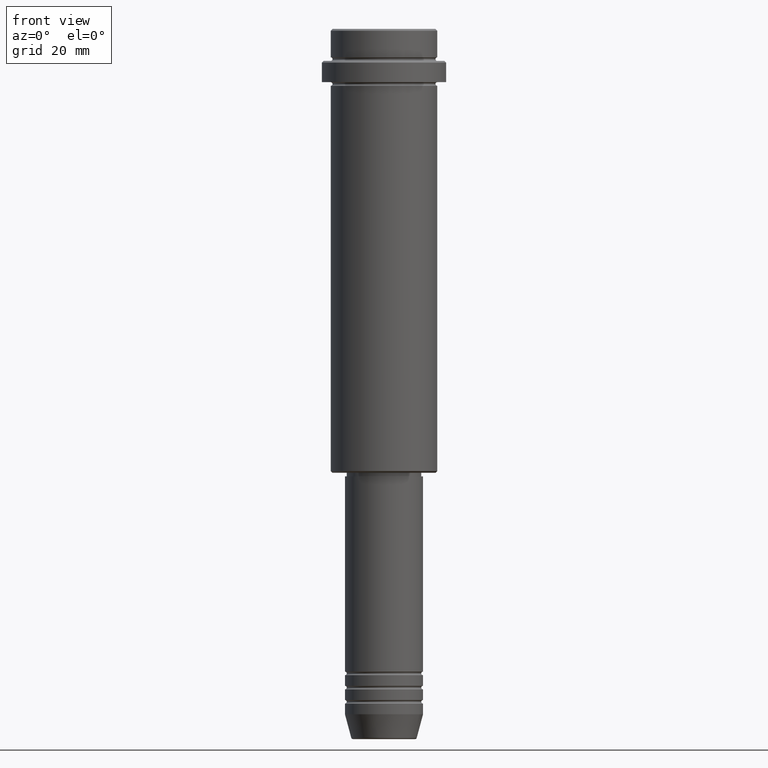
[diagram: clean part render]
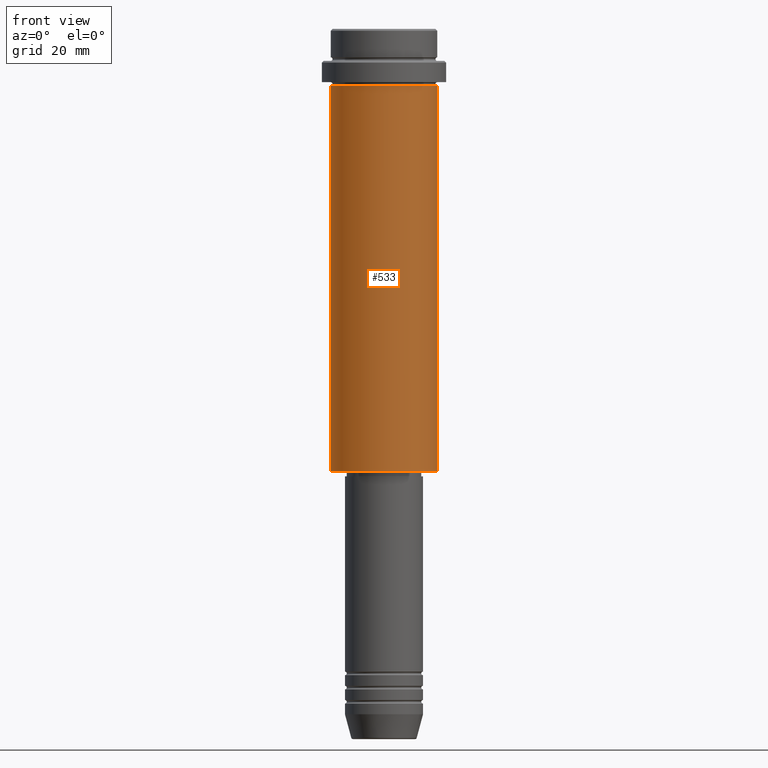
[diagram: same view with one face highlighted and labeled with its STEP entity id]
A machine part, front view. The second image highlights one B-rep face of the part: STEP entity #533.
In plain terms, the highlighted cylindrical surface (partial cylindrical patch) has radius 15 mm, axis along (-0, -0, 1).
Its self-contained STEP definition (entity closure, byte-faithful):
#45 = AXIS2_PLACEMENT_3D ( 'NONE', #937, #1362, #702 ) ;
#276 = DIRECTION ( 'NONE',  ( -0.000000000000000000, -0.000000000000000000, 1.000000000000000000 ) ) ;
#281 = CARTESIAN_POINT ( 'NONE',  ( 15.00000000000000000, 0.000000000000000000, -124.4999999999999858 ) ) ;
#309 = DIRECTION ( 'NONE',  ( -0.000000000000000000, -0.000000000000000000, 1.000000000000000000 ) ) ;
#352 = VERTEX_POINT ( 'NONE', #1314 ) ;
#374 = VERTEX_POINT ( 'NONE', #496 ) ;
#421 = EDGE_CURVE ( 'NONE', #471, #463, #689, .T. ) ;
#463 = VERTEX_POINT ( 'NONE', #281 ) ;
#471 = VERTEX_POINT ( 'NONE', #1139 ) ;
#496 = CARTESIAN_POINT ( 'NONE',  ( 15.00000000000000178, 0.000000000000000000, -16.00000000000000000 ) ) ;
#533 = ADVANCED_FACE ( 'NONE', ( #544 ), #977, .T. ) ;
#544 = FACE_OUTER_BOUND ( 'NONE', #1132, .T. ) ;
#548 = AXIS2_PLACEMENT_3D ( 'NONE', #1155, #1160, #1037 ) ;
#550 = CIRCLE ( 'NONE', #45, 15.00000000000000178 ) ;
#689 = CIRCLE ( 'NONE', #548, 15.00000000000000000 ) ;
#702 = DIRECTION ( 'NONE',  ( 1.000000000000000000, 0.000000000000000000, 0.000000000000000000 ) ) ;
#710 = ORIENTED_EDGE ( 'NONE', *, *, #421, .T. ) ;
#809 = VECTOR ( 'NONE', #276, 1000.000000000000000 ) ;
#814 = LINE ( 'NONE', #1249, #809 ) ;
#859 = LINE ( 'NONE', #942, #1083 ) ;
#921 = EDGE_CURVE ( 'NONE', #352, #374, #550, .T. ) ;
#937 = CARTESIAN_POINT ( 'NONE',  ( 0.000000000000000000, 0.000000000000000000, -16.00000000000000000 ) ) ;
#942 = CARTESIAN_POINT ( 'NONE',  ( 15.00000000000000000, 0.000000000000000000, 0.000000000000000000 ) ) ;
#977 = CYLINDRICAL_SURFACE ( 'NONE', #1276, 15.00000000000000000 ) ;
#991 = DIRECTION ( 'NONE',  ( 1.000000000000000000, 0.000000000000000000, 0.000000000000000000 ) ) ;
#1037 = DIRECTION ( 'NONE',  ( -1.000000000000000000, 0.000000000000000000, 0.000000000000000000 ) ) ;
#1083 = VECTOR ( 'NONE', #1263, 1000.000000000000000 ) ;
#1086 = ORIENTED_EDGE ( 'NONE', *, *, #921, .F. ) ;
#1108 = ORIENTED_EDGE ( 'NONE', *, *, #1294, .T. ) ;
#1132 = EDGE_LOOP ( 'NONE', ( #1363, #710, #1108, #1086 ) ) ;
#1139 = CARTESIAN_POINT ( 'NONE',  ( -15.00000000000000000, 1.836970198721029589E-15, -124.4999999999999858 ) ) ;
#1155 = CARTESIAN_POINT ( 'NONE',  ( 0.000000000000000000, 0.000000000000000000, -124.4999999999999858 ) ) ;
#1160 = DIRECTION ( 'NONE',  ( -0.000000000000000000, -0.000000000000000000, 1.000000000000000000 ) ) ;
#1223 = EDGE_CURVE ( 'NONE', #471, #352, #814, .T. ) ;
#1249 = CARTESIAN_POINT ( 'NONE',  ( -15.00000000000000000, 1.836970198721029589E-15, 0.000000000000000000 ) ) ;
#1263 = DIRECTION ( 'NONE',  ( -0.000000000000000000, -0.000000000000000000, 1.000000000000000000 ) ) ;
#1276 = AXIS2_PLACEMENT_3D ( 'NONE', #1401, #309, #991 ) ;
#1294 = EDGE_CURVE ( 'NONE', #463, #374, #859, .T. ) ;
#1314 = CARTESIAN_POINT ( 'NONE',  ( -15.00000000000000355, 1.836970198721029983E-15, -16.00000000000000000 ) ) ;
#1362 = DIRECTION ( 'NONE',  ( -0.000000000000000000, -0.000000000000000000, 1.000000000000000000 ) ) ;
#1363 = ORIENTED_EDGE ( 'NONE', *, *, #1223, .F. ) ;
#1401 = CARTESIAN_POINT ( 'NONE',  ( 0.000000000000000000, 0.000000000000000000, 0.000000000000000000 ) ) ;